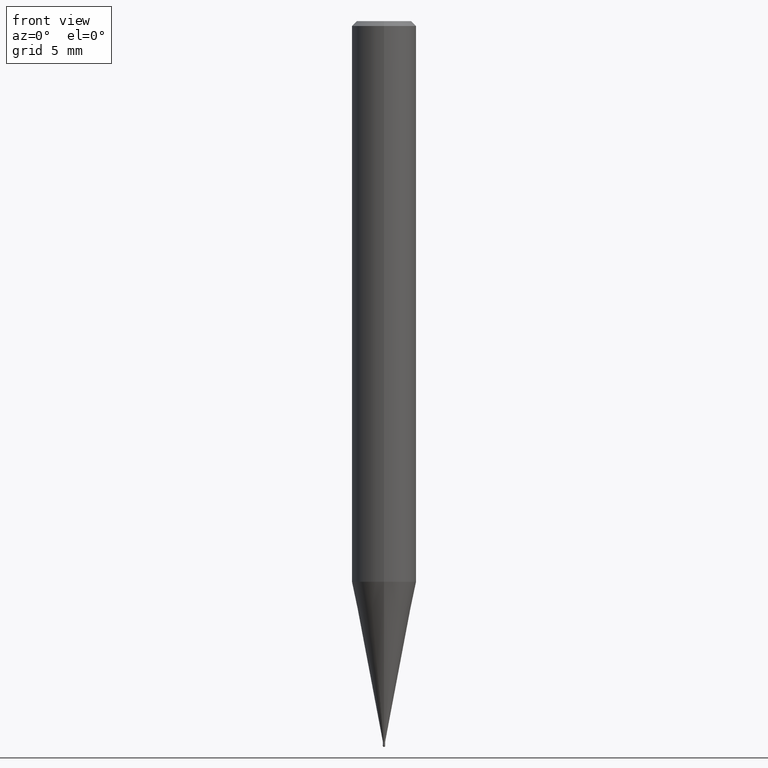
[diagram: clean part render]
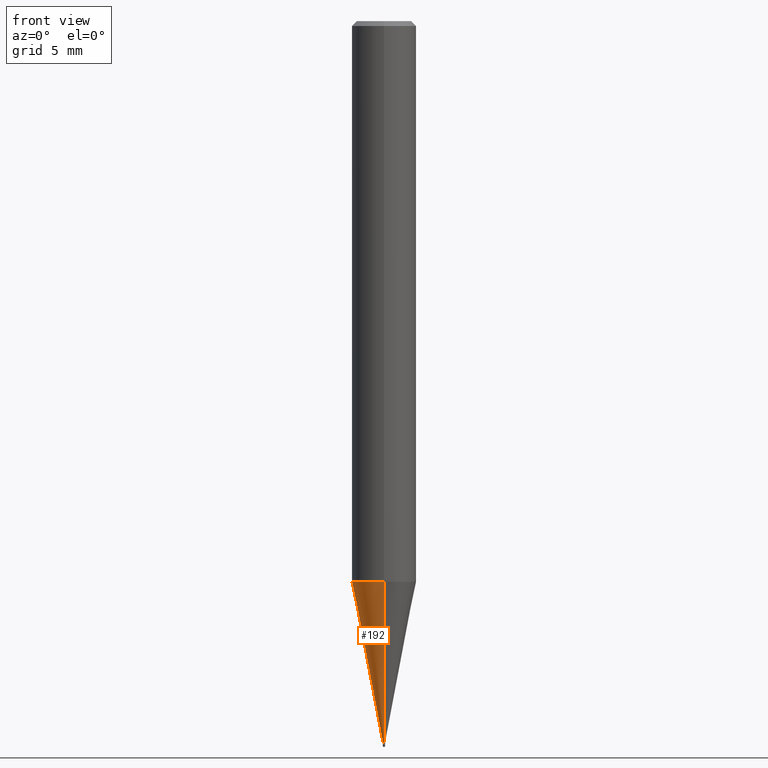
[diagram: same view with one face highlighted and labeled with its STEP entity id]
A machine part, front view. The second image highlights one B-rep face of the part: STEP entity #192.
In plain terms, the highlighted conical surface has half-angle 11 deg.
Its self-contained STEP definition (entity closure, byte-faithful):
#100=VERTEX_POINT('',#242);
#114=EDGE_CURVE('',#118,#134,#257,.T.);
#118=VERTEX_POINT('',#261);
#120=EDGE_CURVE('',#100,#166,#263,.T.);
#134=VERTEX_POINT('',#279);
#150=EDGE_CURVE('',#134,#100,#295,.T.);
#166=VERTEX_POINT('',#315);
#192=ADVANCED_FACE('',(#347),#348,.T.);
#214=EDGE_CURVE('',#118,#166,#372,.T.);
#242=CARTESIAN_POINT('',(0.0,1.99995,-34.758));
#257=LINE('',#414,#415);
#261=CARTESIAN_POINT('',(8.25996985653193E-018,-0.06745,-44.7));
#263=LINE('',#421,#422);
#279=CARTESIAN_POINT('',(2.44915147732706E-016,-1.99995,-34.758));
#295=CIRCLE('',#462,1.99995);
#315=CARTESIAN_POINT('',(0.0,0.06745,-44.7));
#347=FACE_OUTER_BOUND('',#520,.T.);
#348=CONICAL_SURFACE('',#521,1.0337,0.191983403757332);
#372=CIRCLE('',#557,0.06745);
#414=CARTESIAN_POINT('',(1.26587558794619E-016,-1.0337,-39.729));
#415=VECTOR('',#586,1.0);
#421=CARTESIAN_POINT('',(-1.26587558794619E-016,1.0337,-39.729));
#422=VECTOR('',#588,1.0);
#462=AXIS2_PLACEMENT_3D('',#620,#621,#622);
#520=EDGE_LOOP('',(#705,#706,#707,#708));
#521=AXIS2_PLACEMENT_3D('',#709,#710,#711);
#557=AXIS2_PLACEMENT_3D('',#737,#738,#739);
#586=DIRECTION('',(2.33662525420506E-017,-0.190806233114154,0.981627720373048));
#588=DIRECTION('',(2.33662525420506E-017,-0.190806233114154,-0.981627720373048));
#620=CARTESIAN_POINT('',(0.0,0.0,-34.758));
#621=DIRECTION('',(0.0,0.0,-1.0));
#622=DIRECTION('',(0.0,1.0,0.0));
#705=ORIENTED_EDGE('',*,*,#120,.T.);
#706=ORIENTED_EDGE('',*,*,#214,.F.);
#707=ORIENTED_EDGE('',*,*,#114,.T.);
#708=ORIENTED_EDGE('',*,*,#150,.T.);
#709=CARTESIAN_POINT('',(0.0,0.0,-39.729));
#710=DIRECTION('',(-0.0,-0.0,1.0));
#711=DIRECTION('',(0.0,1.0,0.0));
#737=CARTESIAN_POINT('',(0.0,0.0,-44.7));
#738=DIRECTION('',(0.0,0.0,-1.0));
#739=DIRECTION('',(0.0,1.0,0.0));